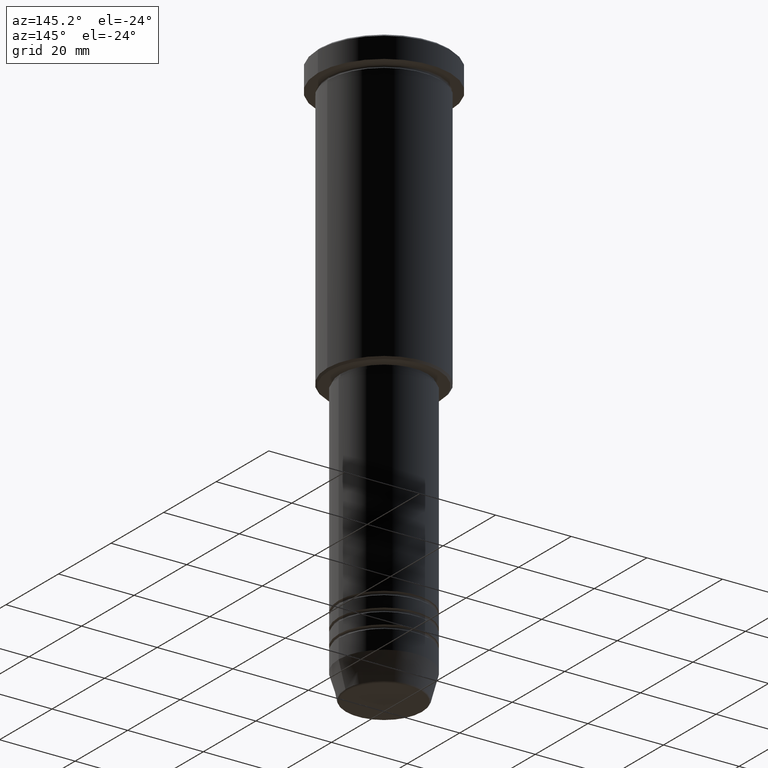
[diagram: clean part render]
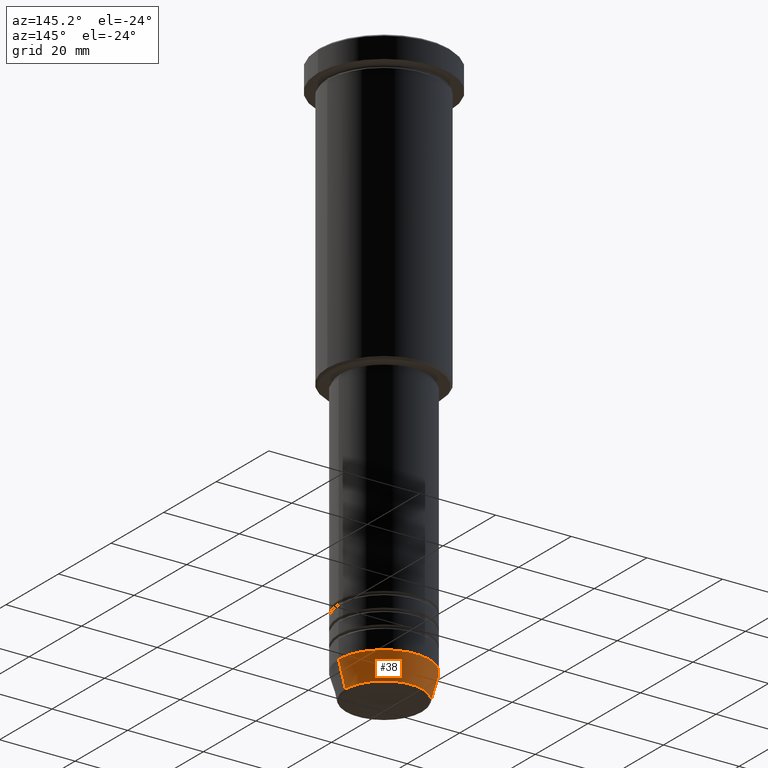
[diagram: same view with one face highlighted and labeled with its STEP entity id]
A machine part, auxiliary view. The second image highlights one B-rep face of the part: STEP entity #38.
In plain terms, the highlighted conical surface has half-angle 15 deg.
Its self-contained STEP definition (entity closure, byte-faithful):
#29 = CONICAL_SURFACE ( 'NONE', #347, 12.00000000000000000, 0.2617993877991500740 ) ;
#31 = ORIENTED_EDGE ( 'NONE', *, *, #399, .T. ) ;
#38 = ADVANCED_FACE ( 'NONE', ( #1134 ), #29, .T. ) ;
#45 = CIRCLE ( 'NONE', #895, 10.22365507213719127 ) ;
#67 = CARTESIAN_POINT ( 'NONE',  ( 12.00000000000000000, 0.000000000000000000, -144.0000000000000284 ) ) ;
#75 = LINE ( 'NONE', #253, #936 ) ;
#94 = CARTESIAN_POINT ( 'NONE',  ( 12.00000000000000000, 0.000000000000000000, -144.0000000000000284 ) ) ;
#157 = EDGE_CURVE ( 'NONE', #1021, #1060, #45, .T. ) ;
#196 = AXIS2_PLACEMENT_3D ( 'NONE', #580, #986, #901 ) ;
#211 = VERTEX_POINT ( 'NONE', #656 ) ;
#224 = DIRECTION ( 'NONE',  ( 1.000000000000000000, 0.000000000000000000, 0.000000000000000000 ) ) ;
#226 = DIRECTION ( 'NONE',  ( 1.000000000000000000, 0.000000000000000000, 0.000000000000000000 ) ) ;
#229 = CIRCLE ( 'NONE', #196, 12.00000000000000000 ) ;
#248 = ORIENTED_EDGE ( 'NONE', *, *, #157, .T. ) ;
#253 = CARTESIAN_POINT ( 'NONE',  ( -12.00000000000000000, 1.469576158976823947E-15, -144.0000000000000284 ) ) ;
#301 = DIRECTION ( 'NONE',  ( -0.000000000000000000, -0.000000000000000000, 1.000000000000000000 ) ) ;
#347 = AXIS2_PLACEMENT_3D ( 'NONE', #795, #301, #226 ) ;
#399 = EDGE_CURVE ( 'NONE', #1060, #211, #75, .T. ) ;
#443 = ORIENTED_EDGE ( 'NONE', *, *, #1034, .F. ) ;
#444 = CARTESIAN_POINT ( 'NONE',  ( 0.000000000000000000, 0.000000000000000000, -150.6294095225512706 ) ) ;
#548 = EDGE_CURVE ( 'NONE', #806, #211, #229, .T. ) ;
#580 = CARTESIAN_POINT ( 'NONE',  ( 0.000000000000000000, 0.000000000000000000, -144.0000000000000284 ) ) ;
#610 = VECTOR ( 'NONE', #1179, 1000.000000000000000 ) ;
#656 = CARTESIAN_POINT ( 'NONE',  ( -12.00000000000000000, 1.469576158976823947E-15, -144.0000000000000284 ) ) ;
#658 = DIRECTION ( 'NONE',  ( -0.2588190451025213501, 3.169619151431772337E-17, 0.9659258262890680902 ) ) ;
#695 = EDGE_LOOP ( 'NONE', ( #248, #31, #864, #443 ) ) ;
#742 = CARTESIAN_POINT ( 'NONE',  ( -10.22365507213719127, 1.360806402472382744E-15, -150.6294095225512706 ) ) ;
#795 = CARTESIAN_POINT ( 'NONE',  ( 0.000000000000000000, 0.000000000000000000, -144.0000000000000284 ) ) ;
#806 = VERTEX_POINT ( 'NONE', #67 ) ;
#864 = ORIENTED_EDGE ( 'NONE', *, *, #548, .F. ) ;
#895 = AXIS2_PLACEMENT_3D ( 'NONE', #444, #1176, #224 ) ;
#901 = DIRECTION ( 'NONE',  ( 1.000000000000000000, 0.000000000000000000, 0.000000000000000000 ) ) ;
#936 = VECTOR ( 'NONE', #658, 1000.000000000000000 ) ;
#939 = LINE ( 'NONE', #94, #610 ) ;
#986 = DIRECTION ( 'NONE',  ( -0.000000000000000000, -0.000000000000000000, 1.000000000000000000 ) ) ;
#1021 = VERTEX_POINT ( 'NONE', #1128 ) ;
#1034 = EDGE_CURVE ( 'NONE', #1021, #806, #939, .T. ) ;
#1060 = VERTEX_POINT ( 'NONE', #742 ) ;
#1128 = CARTESIAN_POINT ( 'NONE',  ( 10.22365507213719127, 0.000000000000000000, -150.6294095225512706 ) ) ;
#1134 = FACE_OUTER_BOUND ( 'NONE', #695, .T. ) ;
#1176 = DIRECTION ( 'NONE',  ( -0.000000000000000000, -0.000000000000000000, 1.000000000000000000 ) ) ;
#1179 = DIRECTION ( 'NONE',  ( 0.2588190451025213501, 0.000000000000000000, 0.9659258262890680902 ) ) ;